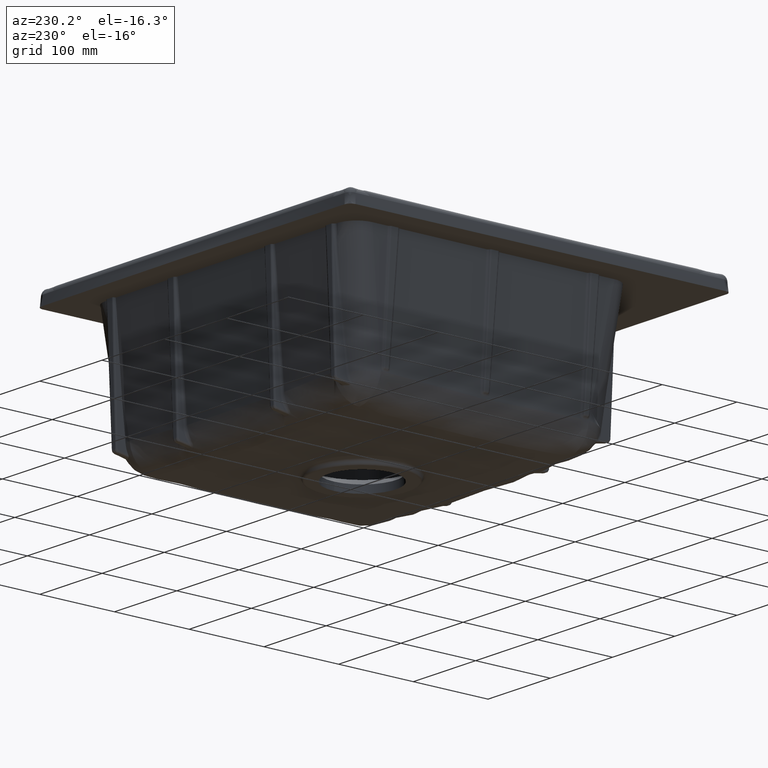
[diagram: clean part render]
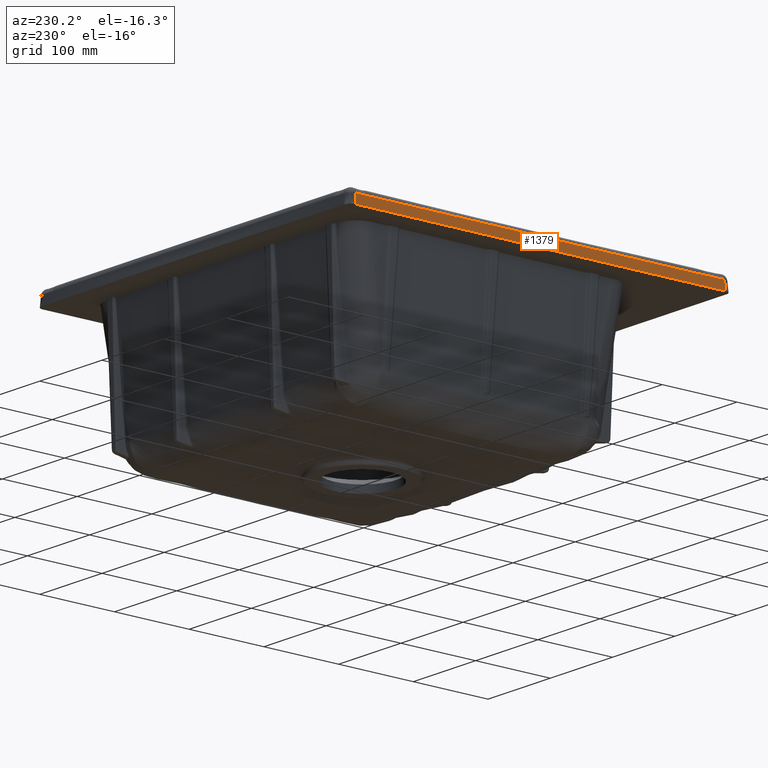
[diagram: same view with one face highlighted and labeled with its STEP entity id]
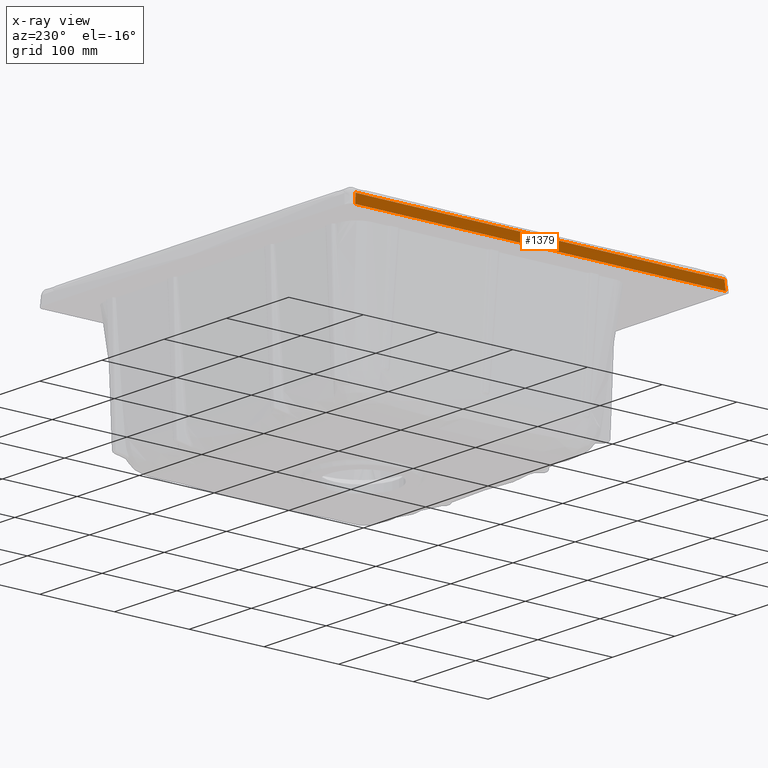
[diagram: x-ray of the same camera — body ghosted, the highlighted face saturated]
A machine part, auxiliary view. The second image highlights one B-rep face of the part: STEP entity #1379.
The next image is the same camera in x-ray: the body ghosted, the highlighted face saturated — about 0% of this face is hidden behind the body in this view.
In plain terms, the highlighted conical surface has half-angle 4 deg.
Its self-contained STEP definition (entity closure, byte-faithful):
#646=FACE_OUTER_BOUND('',#1726,.T.);
#943=B_SPLINE_CURVE_WITH_KNOTS('',3,(#7526,#7527,#7528,#7529),
 .UNSPECIFIED.,.F.,.F.,(4,4),(0.,1.),.UNSPECIFIED.);
#944=B_SPLINE_CURVE_WITH_KNOTS('',3,(#7544,#7545,#7546,#7547),
 .UNSPECIFIED.,.F.,.F.,(4,4),(0.,1.),.UNSPECIFIED.);
#946=B_SPLINE_CURVE_WITH_KNOTS('',3,(#7567,#7568,#7569,#7570),
 .UNSPECIFIED.,.F.,.F.,(4,4),(0.,1.),.UNSPECIFIED.);
#958=B_SPLINE_CURVE_WITH_KNOTS('',3,(#7788,#7789,#7790,#7791),
 .UNSPECIFIED.,.F.,.F.,(4,4),(0.,1.),.UNSPECIFIED.);
#1270=(
BOUNDED_CURVE()
B_SPLINE_CURVE(3,(#7783,#7784,#7785,#7786),.UNSPECIFIED.,.F.,.F.)
B_SPLINE_CURVE_WITH_KNOTS((4,4),(0.,1.),.UNSPECIFIED.)
CURVE()
GEOMETRIC_REPRESENTATION_ITEM()
RATIONAL_B_SPLINE_CURVE((0.999999999926473,0.999999999926473,0.999999999926473,
0.999999999926473))
REPRESENTATION_ITEM('')
);
#1271=(
BOUNDED_CURVE()
B_SPLINE_CURVE(3,(#7793,#7794,#7795,#7796),.UNSPECIFIED.,.F.,.F.)
B_SPLINE_CURVE_WITH_KNOTS((4,4),(0.,1.),.UNSPECIFIED.)
CURVE()
GEOMETRIC_REPRESENTATION_ITEM()
RATIONAL_B_SPLINE_CURVE((0.999999999998363,0.999999999998363,0.999999999998363,
0.999999999998363))
REPRESENTATION_ITEM('')
);
#1379=ADVANCED_FACE('',(#646),#1638,.F.);
#1638=CONICAL_SURFACE('',#4850,21676.0312408765,4.);
#1726=EDGE_LOOP('',(#2216,#2217,#2218,#2219,#2220,#2221));
#2216=ORIENTED_EDGE('',*,*,#3996,.T.);
#2217=ORIENTED_EDGE('',*,*,#3998,.T.);
#2218=ORIENTED_EDGE('',*,*,#4028,.F.);
#2219=ORIENTED_EDGE('',*,*,#4029,.F.);
#2220=ORIENTED_EDGE('',*,*,#4030,.F.);
#2221=ORIENTED_EDGE('',*,*,#4001,.T.);
#3517=VERTEX_POINT('',#7523);
#3518=VERTEX_POINT('',#7525);
#3519=VERTEX_POINT('',#7543);
#3521=VERTEX_POINT('',#7562);
#3535=VERTEX_POINT('',#7787);
#3536=VERTEX_POINT('',#7792);
#3996=EDGE_CURVE('',#3517,#3518,#943,.T.);
#3998=EDGE_CURVE('',#3518,#3519,#944,.T.);
#4001=EDGE_CURVE('',#3521,#3517,#946,.T.);
#4028=EDGE_CURVE('',#3535,#3519,#1270,.T.);
#4029=EDGE_CURVE('',#3536,#3535,#958,.T.);
#4030=EDGE_CURVE('',#3521,#3536,#1271,.T.);
#4850=AXIS2_PLACEMENT_3D('',#7797,#5218,#5219);
#5218=DIRECTION('',(0.,0.,1.));
#5219=DIRECTION('',(-1.,-1.22530138825263E-16,0.));
#7523=CARTESIAN_POINT('',(-248.70928610911,40.8073245038527,-7.59253984329037));
#7525=CARTESIAN_POINT('',(-250.169373879823,484.383204800542,-7.5925398277835));
#7526=CARTESIAN_POINT('',(-248.70928611,40.8073245038603,-7.59253985598681));
#7527=CARTESIAN_POINT('',(-247.683012188389,188.665770920644,-7.59253985598681));
#7528=CARTESIAN_POINT('',(-248.169742084776,336.534718546433,-7.59253985598681));
#7529=CARTESIAN_POINT('',(-250.169373881796,484.383204800515,-7.59253985598681));
#7543=CARTESIAN_POINT('',(-250.416103973284,502.533062732288,-7.50180547725431));
#7544=CARTESIAN_POINT('',(-250.169373881796,484.383204800515,-7.59253985598647));
#7545=CARTESIAN_POINT('',(-250.251208033615,490.433846467813,-7.59253985598647));
#7546=CARTESIAN_POINT('',(-250.333451955571,496.483798040067,-7.56229507087929));
#7547=CARTESIAN_POINT('',(-250.416103974921,502.533062732019,-7.50180550066494));
#7562=CARTESIAN_POINT('',(-248.958580506362,7.52450900308879,-7.48851903479023));
#7567=CARTESIAN_POINT('',(-248.9585805071,7.52450900302595,-7.48851904529339));
#7568=CARTESIAN_POINT('',(-248.869376748143,18.6201845597601,-7.55786625242223));
#7569=CARTESIAN_POINT('',(-248.786280836123,29.7144570469058,-7.59253985598665));
#7570=CARTESIAN_POINT('',(-248.70928611,40.8073245038603,-7.59253985598665));
#7783=CARTESIAN_POINT('',(-251.302546136568,503.394718596153,-19.999999999948));
#7784=CARTESIAN_POINT('',(-251.007059635185,503.107507181618,-15.8339350813517));
#7785=CARTESIAN_POINT('',(-250.711578914691,502.820288576948,-11.6678702463549));
#7786=CARTESIAN_POINT('',(-250.41610397493,502.53306273345,-7.50180550056582));
#7787=CARTESIAN_POINT('',(-251.302546136571,503.394718595768,-19.9999999999866));
#7788=CARTESIAN_POINT('',(-249.840931148203,6.6499457683011,-20.));
#7789=CARTESIAN_POINT('',(-248.430582726479,172.237120045806,-20.));
#7790=CARTESIAN_POINT('',(-248.91778772261,337.81871098823,-20.));
#7791=CARTESIAN_POINT('',(-251.302546136596,503.394718595574,-20.));
#7792=CARTESIAN_POINT('',(-249.840931148175,6.64994576829752,-20.0000000000002));
#7793=CARTESIAN_POINT('',(-248.958580507096,7.52450900299919,-7.48851904529119));
#7794=CARTESIAN_POINT('',(-249.252691434784,7.23298789121118,-11.6590131149861));
#7795=CARTESIAN_POINT('',(-249.546808314923,6.94146681298532,-15.8295067668841));
#7796=CARTESIAN_POINT('',(-249.840931148168,6.64994576826838,-19.9999999999908));
#7797=CARTESIAN_POINT('',(-21923.6874999996,191.251654411766,0.));